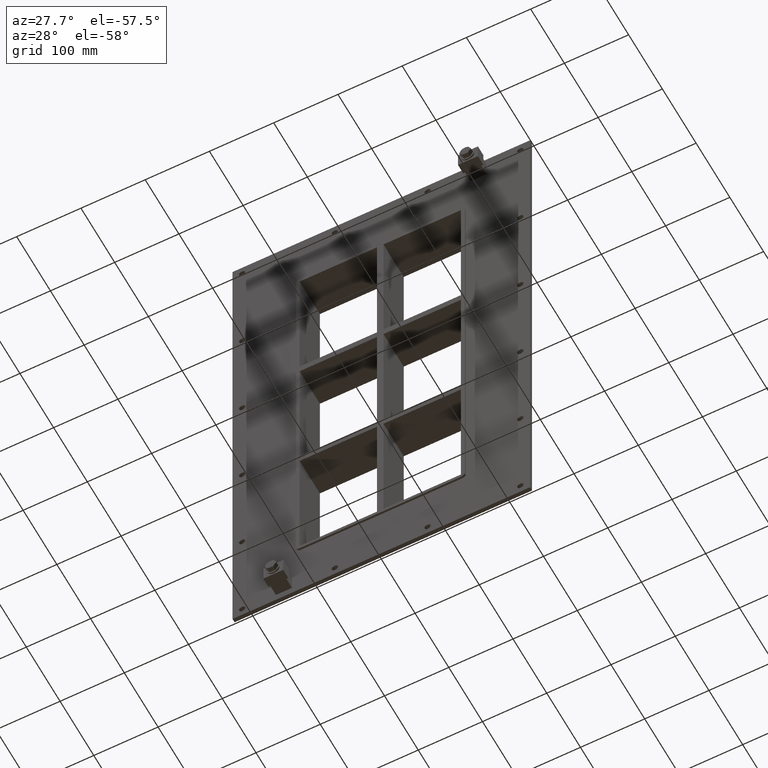
[diagram: clean part render]
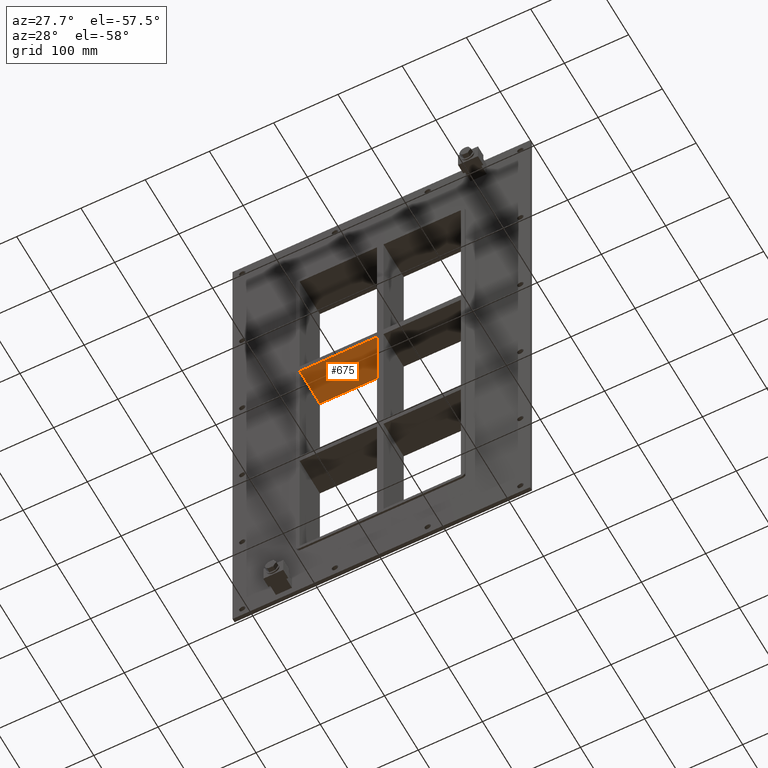
[diagram: same view with one face highlighted and labeled with its STEP entity id]
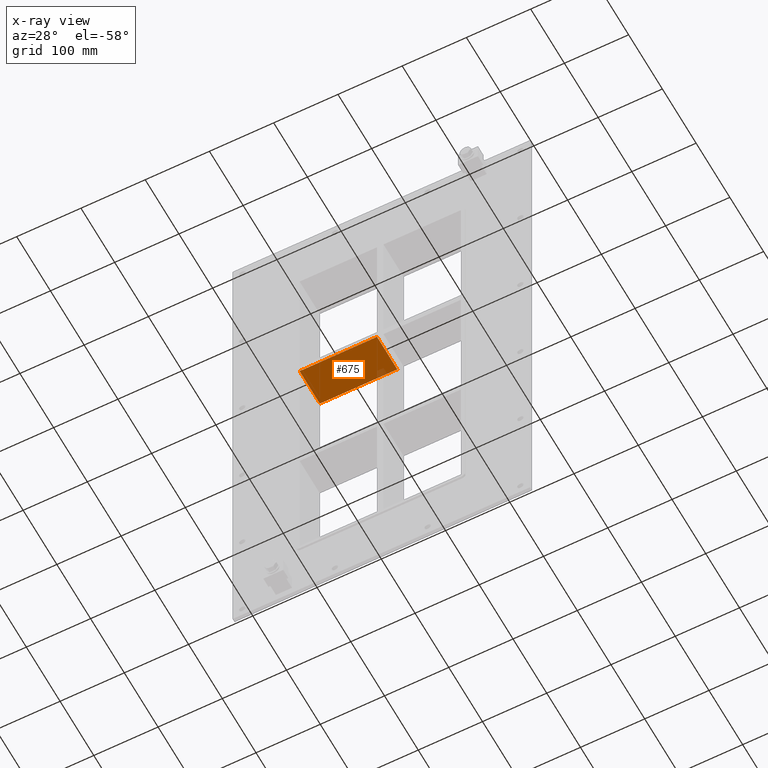
[diagram: x-ray of the same camera — body ghosted, the highlighted face saturated]
A machine part, auxiliary view. The second image highlights one B-rep face of the part: STEP entity #675.
The next image is the same camera in x-ray: the body ghosted, the highlighted face saturated — about 2% of this face is hidden behind the body in this view.
In plain terms, the highlighted planar face has unit normal (0, 0, -1).
Its self-contained STEP definition (entity closure, byte-faithful):
#636=CARTESIAN_POINT('',(125.49999999999272,-3.0,108.99999999998899));
#637=DIRECTION('',(0.0,0.0,-1.0));
#638=DIRECTION('',(-1.0,0.0,0.0));
#639=AXIS2_PLACEMENT_3D('',#636,#637,#638);
#640=PLANE('',#639);
#641=CARTESIAN_POINT('',(-4.999999999999183,-3.0,108.99999999998927));
#642=VERTEX_POINT('',#641);
#643=CARTESIAN_POINT('',(-4.999999999999176,57.0,108.99999999998926));
#644=VERTEX_POINT('',#643);
#645=CARTESIAN_POINT('',(-4.999999999999174,-3.0,108.99999999998926));
#646=DIRECTION('',(0.0,1.0,0.0));
#647=VECTOR('',#646,60.0);
#648=LINE('',#645,#647);
#649=EDGE_CURVE('',#642,#644,#648,.T.);
#650=ORIENTED_EDGE('',*,*,#649,.F.);
#651=CARTESIAN_POINT('',(-125.4999999999975,-3.0,108.99999999998954));
#652=VERTEX_POINT('',#651);
#653=CARTESIAN_POINT('',(-4.999999999999176,-3.0,108.99999999998927));
#654=DIRECTION('',(-1.0,0.0,0.0));
#655=VECTOR('',#654,120.49999999999832);
#656=LINE('',#653,#655);
#657=EDGE_CURVE('',#642,#652,#656,.T.);
#658=ORIENTED_EDGE('',*,*,#657,.T.);
#659=CARTESIAN_POINT('',(-125.4999999999975,57.0,108.99999999998954));
#660=VERTEX_POINT('',#659);
#661=CARTESIAN_POINT('',(-125.5,57.000000000000007,108.99999999998954));
#662=DIRECTION('',(0.0,-1.0,0.0));
#663=VECTOR('',#662,60.000000000000007);
#664=LINE('',#661,#663);
#665=EDGE_CURVE('',#660,#652,#664,.T.);
#666=ORIENTED_EDGE('',*,*,#665,.F.);
#667=CARTESIAN_POINT('',(-4.999999999999176,57.0,108.99999999998927));
#668=DIRECTION('',(-1.0,0.0,0.0));
#669=VECTOR('',#668,120.49999999999832);
#670=LINE('',#667,#669);
#671=EDGE_CURVE('',#644,#660,#670,.T.);
#672=ORIENTED_EDGE('',*,*,#671,.F.);
#673=EDGE_LOOP('',(#650,#658,#666,#672));
#674=FACE_OUTER_BOUND('',#673,.T.);
#675=ADVANCED_FACE('',(#674),#640,.T.);